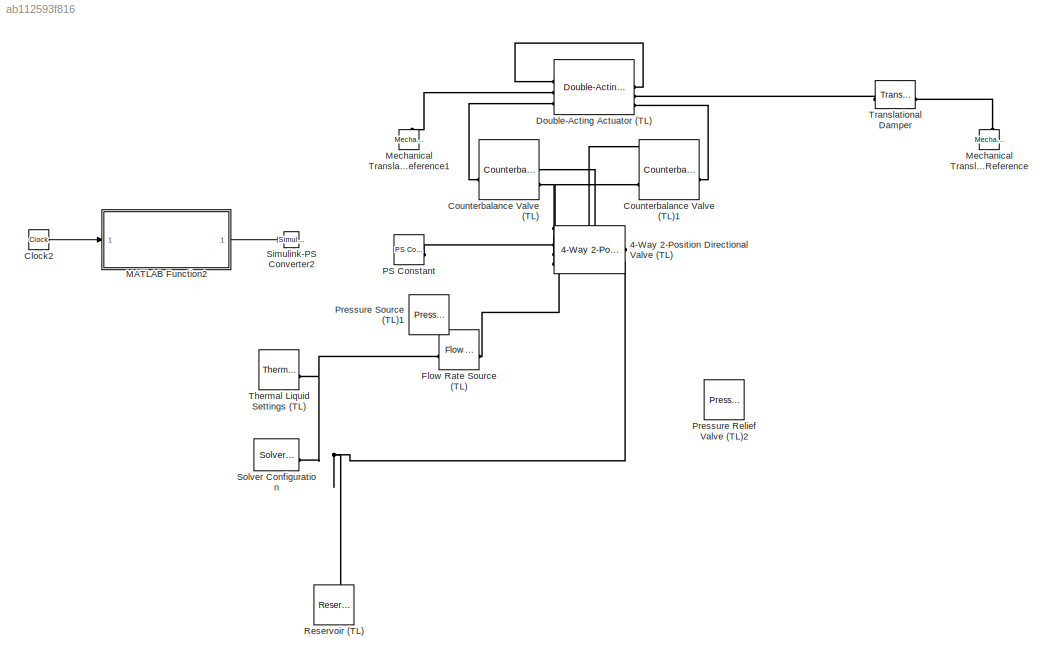
MODEL slx_ab112593f816
KIND model
CONFIG AbsTol = auto
CONFIG EnableMultiTasking = off
CONFIG FixedStep = auto
CONFIG MaxStep = auto
CONFIG MinStep = auto
CONFIG RelTol = 1e-3
CONFIG SampleTimeConstraint = Unconstrained
CONFIG SolverName = VariableStepAuto
CONFIG StartTime = 0.0
CONFIG StopTime = 1000
BLOCK [Reference] 4-Way 2-Position Directional Valve (TL)  REF=SimscapeFluids_lib/Thermal Liquid/Valves & Orifices/Directional Control
Valves/4-Way 2-Position
Directional Valve
(TL)
  SourceBlock = SimscapeFluids_lib/Thermal Liquid/Valves & Orifices/Directional Control\nValves/4-Way 2-Position\nDirectional Valve\n(TL)
  SourceType = 4-Way 2-Position\nDirectional Valve\n(TL)
BLOCK [Clock] Clock2
  Commented = on
BLOCK [Reference] Counterbalance Valve (TL)  REF=SimscapeFluids_lib/Thermal Liquid/Valves & Orifices/Pressure Control
Valves/Counterbalance Valve
(TL)
  SourceBlock = SimscapeFluids_lib/Thermal Liquid/Valves & Orifices/Pressure Control\nValves/Counterbalance Valve\n(TL)
  SourceType = Counterbalance Valve\n(TL)
BLOCK [Reference] Counterbalance Valve (TL)1  REF=SimscapeFluids_lib/Thermal Liquid/Valves & Orifices/Pressure Control
Valves/Counterbalance Valve
(TL)
  SourceBlock = SimscapeFluids_lib/Thermal Liquid/Valves & Orifices/Pressure Control\nValves/Counterbalance Valve\n(TL)
  SourceType = Counterbalance Valve\n(TL)
BLOCK [Reference] Double-Acting Actuator (TL)  REF=SimscapeFluids_lib/Thermal Liquid/Actuators/Double-Acting
Actuator (TL)
  SourceBlock = SimscapeFluids_lib/Thermal Liquid/Actuators/Double-Acting\nActuator (TL)
  SourceType = Double-Acting\nActuator (TL)
BLOCK [Reference] Flow Rate Source (TL)  REF=fl_lib/Thermal Liquid/Sources/Flow Rate Source
(TL)
  SourceBlock = fl_lib/Thermal Liquid/Sources/Flow Rate Source\n(TL)
  SourceType = Flow Rate Source\n(TL)
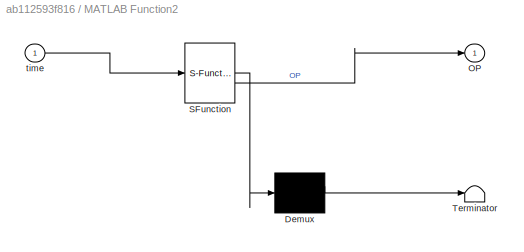
BLOCK [SubSystem] MATLAB Function2
  Commented = on
  ErrorFcn = Stateflow.Translate.translate
  PermitHierarchicalResolution = ExplicitOnly
  SFBlockType = MATLAB Function
  TreatAsAtomicUnit = on
BLOCK [Demux] MATLAB Function2/ Demux 
  Outputs = 1
BLOCK [S-Function] MATLAB Function2/ SFunction 
  EnableBusSupport = on
  FunctionName = sf_sfun
  PortCounts = [1 2]
  SFcnIsStateOwnerBlock = off
  SFunctionDeploymentMode = off
  Tag = Stateflow S-Function 3
BLOCK [Terminator] MATLAB Function2/ Terminator 
BLOCK [Outport] MATLAB Function2/OP
BLOCK [Inport] MATLAB Function2/time
BLOCK [Reference] Mechanical Translational Reference  REF=fl_lib/Mechanical/Translational
Elements/Mechanical
Translational
Reference
  NameLocation = right
  SourceBlock = fl_lib/Mechanical/Translational\nElements/Mechanical\nTranslational\nReference
  SourceType = Mechanical\nTranslational\nReference
BLOCK [Reference] Mechanical Translational Reference1  REF=fl_lib/Mechanical/Translational
Elements/Mechanical
Translational
Reference
  NameLocation = right
  SourceBlock = fl_lib/Mechanical/Translational\nElements/Mechanical\nTranslational\nReference
  SourceType = Mechanical\nTranslational\nReference
BLOCK [Reference] PS Constant  REF=fl_lib/Physical Signals/Sources/PS Constant
  SourceBlock = fl_lib/Physical Signals/Sources/PS Constant
  SourceType = PS Constant
BLOCK [Reference] Pressure Relief Valve (TL)2  REF=SimscapeFluids_lib/Thermal Liquid/Valves & Orifices/Pressure Control
Valves/Pressure Relief
Valve (TL)
  Commented = on
  SourceBlock = SimscapeFluids_lib/Thermal Liquid/Valves & Orifices/Pressure Control\nValves/Pressure Relief\nValve (TL)
  SourceType = Pressure Relief\nValve (TL)
BLOCK [Reference] Pressure Source (TL)1  REF=fl_lib/Thermal Liquid/Sources/Pressure Source (TL)
  Commented = on
  SourceBlock = fl_lib/Thermal Liquid/Sources/Pressure Source (TL)
  SourceType = Pressure Source (TL)
BLOCK [Reference] Reservoir (TL)  REF=fl_lib/Thermal Liquid/Elements/Reservoir (TL)
  NameLocation = right
  SourceBlock = fl_lib/Thermal Liquid/Elements/Reservoir (TL)
  SourceType = Reservoir (TL)
BLOCK [Reference] Simulink-PS Converter2  REF=nesl_utility/Simulink-PS
Converter
  Commented = on
  SourceBlock = nesl_utility/Simulink-PS\nConverter
  SourceType = Simulink-PS\nConverter
BLOCK [Reference] Solver Configuration  REF=nesl_utility/Solver
Configuration
  SourceBlock = nesl_utility/Solver\nConfiguration
  SourceType = Solver\nConfiguration
BLOCK [Reference] Thermal Liquid Settings (TL)  REF=fl_lib/Thermal Liquid/Utilities/Thermal Liquid
Settings (TL)
  SourceBlock = fl_lib/Thermal Liquid/Utilities/Thermal Liquid\nSettings (TL)
  SourceType = Thermal Liquid\nSettings (TL)
BLOCK [Reference] Translational Damper  REF=fl_lib/Mechanical/Translational
Elements/Translational Damper
  SourceBlock = fl_lib/Mechanical/Translational\nElements/Translational Damper
  SourceType = Translational Damper
LINE Clock2:1 -> MATLAB Function2:1
LINE MATLAB Function2:1 -> Simulink-PS Converter2:1
PLINE 4-Way 2-Position Directional Valve (TL):LConn1 -- PS Constant:RConn1
PNET net1: 4-Way 2-Position Directional Valve (TL):LConn2 -- Counterbalance Valve (TL)1:RConn1 -- Counterbalance Valve (TL):RConn2
PNET net2: 4-Way 2-Position Directional Valve (TL):LConn3 -- Counterbalance Valve (TL)1:RConn2 -- Counterbalance Valve (TL):RConn1
PLINE 4-Way 2-Position Directional Valve (TL):RConn1 -- Flow Rate Source (TL):RConn1
PNET net3: 4-Way 2-Position Directional Valve (TL):RConn2 -- Flow Rate Source (TL):LConn1 -- Reservoir (TL):LConn1 -- Solver Configuration:RConn1 -- Thermal Liquid Settings (TL):RConn1
PLINE Counterbalance Valve (TL)1:LConn1 -- Double-Acting Actuator (TL):RConn4
PLINE Counterbalance Valve (TL):LConn1 -- Double-Acting Actuator (TL):LConn3
PLINE Double-Acting Actuator (TL):LConn1 -- Double-Acting Actuator (TL):RConn2
PLINE Double-Acting Actuator (TL):LConn2 -- Mechanical Translational Reference1:LConn1
PLINE Double-Acting Actuator (TL):RConn3 -- Translational Damper:LConn1
PLINE Mechanical Translational Reference:LConn1 -- Translational Damper:RConn1
note: PNET lines group multi-terminal physical nets as a canonical sorted terminal list (undirected conserving connections); 2-terminal nets keep the pairwise PLINE form
CHART MATLAB Function2 states=1 transitions=1
  STATE_LABEL 'eML_blk_kernel()'
  STATE_LABEL 'SCRIPT:\nfunction OP = ValveOpening(time)\n\nif time <= 100\n    OP = 10e7;\nelseif time <= 200\n    OP = 15e7;\nelseif time <= 300\n    OP = 20e7;\nelseif time <= 400\n    OP = 25e7;\nelseif time <= 500\n    OP = 30e7;\nelse\n    OP = 50e7;\nend\n\nend\n'
CHART  states=0 transitions=0
